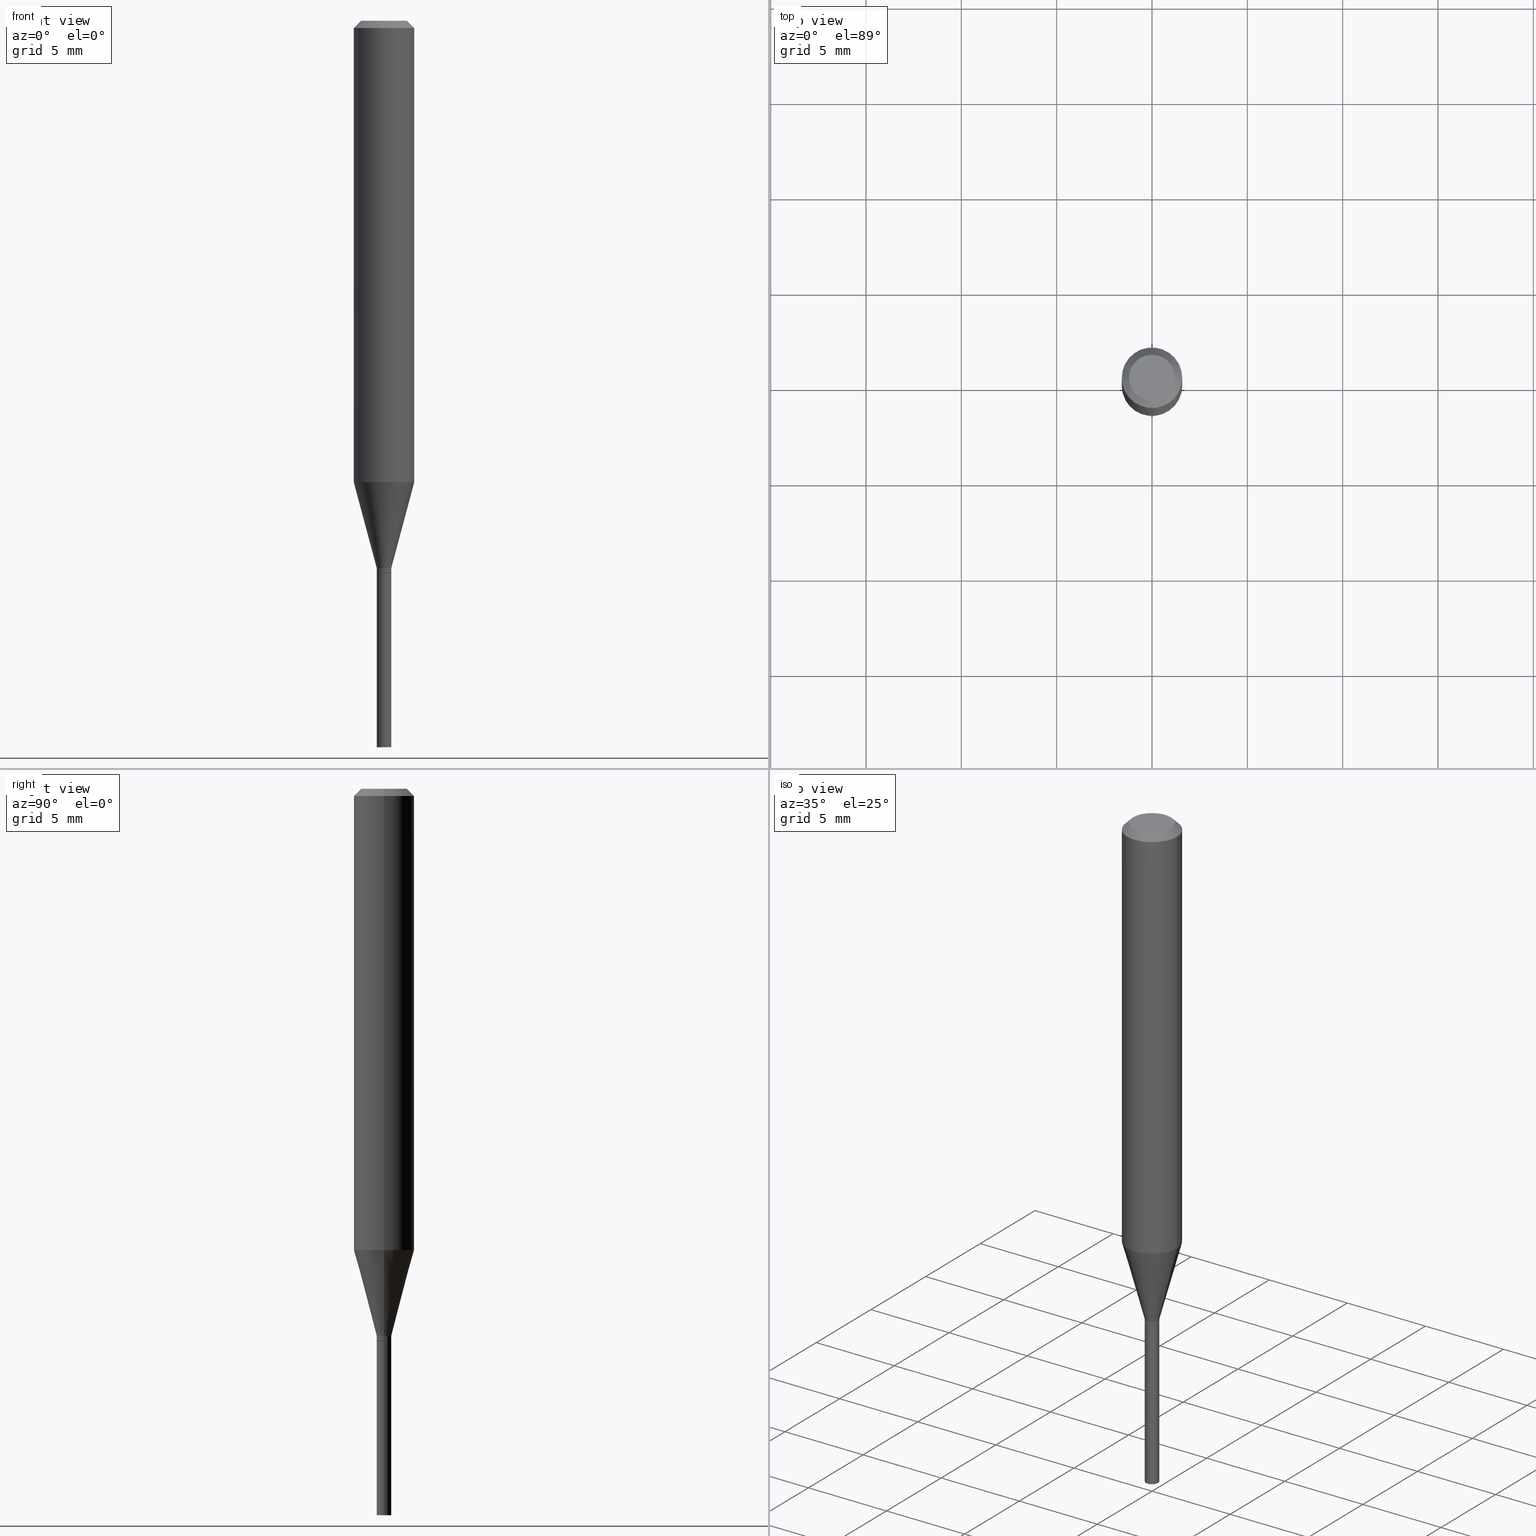
[diagram: canonical four-view strip — front | top / right | iso, engineering-drawing reading convention]
A machine part, canonical four-view strip (front | top / right | iso — engineering-drawing reading convention). The complete STEP part file that produces these views, byte-faithful:
ISO-10303-21;
HEADER;
FILE_DESCRIPTION (( 'STEP AP203' ),
    '1' );
FILE_NAME ('04242.STEP',
    '2024-03-14T17:28:36',
    ( '' ),
    ( '' ),
    'SwSTEP 2.0',
    'SolidWorks 2023',
    '' );
FILE_SCHEMA (( 'CONFIG_CONTROL_DESIGN' ));
ENDSEC;

DATA;
#1 = ADVANCED_FACE ( 'NONE', ( #350 ), #16, .T. ) ;
#2 = CYLINDRICAL_SURFACE ( 'NONE', #328, 0.06250000000000000000 ) ;
#3 = APPROVAL_ROLE ( '' ) ;
#4 = AXIS2_PLACEMENT_3D ( 'NONE', #99, #391, #96 ) ;
#5 = VECTOR ( 'NONE', #157, 39.37007874015748143 ) ;
#6 = FACE_OUTER_BOUND ( 'NONE', #158, .T. ) ;
#7 =( LENGTH_UNIT ( ) NAMED_UNIT ( * ) SI_UNIT ( $, .METRE. ) );
#8 = EDGE_CURVE ( 'NONE', #261, #405, #399, .T. ) ;
#9 = ADVANCED_FACE ( 'NONE', ( #354 ), #442, .F. ) ;
#10 = DIRECTION ( 'NONE',  ( 1.000000000000000000, -6.982962677686266711E-15, 0.000000000000000000 ) ) ;
#11 = DIRECTION ( 'NONE',  ( -2.438088387897960049E-29, 3.491481338843145188E-15, 1.000000000000000000 ) ) ;
#12 = EDGE_LOOP ( 'NONE', ( #315, #388, #269, #97 ) ) ;
#13 = VECTOR ( 'NONE', #414, 39.37007874015748143 ) ;
#14 = DIRECTION ( 'NONE',  ( -0.2588190451025215721, 5.211531920934551831E-15, 0.9659258262890679791 ) ) ;
#15 = CARTESIAN_POINT ( 'NONE',  ( -0.01450000000000000074, -3.877260029595971685E-15, -1.140000000000000124 ) ) ;
#16 = CONICAL_SURFACE ( 'NONE', #162, 0.06250000000000000000, 0.7853981633974237431 ) ;
#17 = VECTOR ( 'NONE', #184, 39.37007874015748143 ) ;
#18 = LOCAL_TIME ( 13, 28, 36.00000000000000000, #423 ) ;
#19 = PLANE ( 'NONE',  #193 ) ;
#20 = VERTEX_POINT ( 'NONE', #304 ) ;
#21 = DIRECTION ( 'NONE',  ( -2.445468806185136597E-29, 3.491481338843145583E-15, 1.000000000000000000 ) ) ;
#22 = EDGE_LOOP ( 'NONE', ( #340, #165, #420, #152 ) ) ;
#23 = CARTESIAN_POINT ( 'NONE',  ( 3.668203209277705088E-31, -5.237222008264718399E-17, -0.01499999999999999944 ) ) ;
#24 = CLOSED_SHELL ( 'NONE', ( #426, #28, #159, #74 ) ) ;
#25 = VECTOR ( 'NONE', #283, 39.37007874015748143 ) ;
#26 = DIRECTION ( 'NONE',  ( -2.445468806185136597E-29, 3.491481338843145583E-15, 1.000000000000000000 ) ) ;
#27 = PERSON_AND_ORGANIZATION_ROLE ( 'creator' ) ;
#28 = ADVANCED_FACE ( 'NONE', ( #134 ), #345, .F. ) ;
#29 = ORIENTED_EDGE ( 'NONE', *, *, #454, .F. ) ;
#30 = EDGE_CURVE ( 'NONE', #443, #261, #308, .T. ) ;
#31 = CARTESIAN_POINT ( 'NONE',  ( 2.787834439051055989E-29, -3.980288726281186698E-15, -1.140000000000000124 ) ) ;
#32 = SECURITY_CLASSIFICATION_LEVEL ( 'unclassified' ) ;
#33 = ORIENTED_EDGE ( 'NONE', *, *, #240, .T. ) ;
#34 = LINE ( 'NONE', #145, #17 ) ;
#35 = CC_DESIGN_PERSON_AND_ORGANIZATION_ASSIGNMENT ( #368, #185, ( #430 ) ) ;
#36 = FACE_OUTER_BOUND ( 'NONE', #68, .T. ) ;
#37 = CALENDAR_DATE ( 2024, 14, 3 ) ;
#38 = CLOSED_SHELL ( 'NONE', ( #326, #160, #444, #45, #239, #80, #125, #1, #9, #334, #116, #154 ) ) ;
#39 = CIRCLE ( 'NONE', #393, 0.04749999999999999362 ) ;
#40 = CC_DESIGN_SECURITY_CLASSIFICATION ( #378, ( #207 ) ) ;
#41 = FACE_OUTER_BOUND ( 'NONE', #12, .T. ) ;
#42 = CARTESIAN_POINT ( 'NONE',  ( 0.06250000000000000000, -4.888073874380388472E-16, -0.01499999999999999944 ) ) ;
#43 =( CONVERSION_BASED_UNIT ( 'INCH', #221 ) LENGTH_UNIT ( ) NAMED_UNIT ( #303 ) );
#44 = CARTESIAN_POINT ( 'NONE',  ( 3.668203209277705088E-31, -5.237222008264718399E-17, -0.01499999999999999944 ) ) ;
#45 = ADVANCED_FACE ( 'NONE', ( #348 ), #62, .T. ) ;
#46 = VECTOR ( 'NONE', #271, 39.37007874015748143 ) ;
#47 = AXIS2_PLACEMENT_3D ( 'NONE', #373, #50, #10 ) ;
#48 = EDGE_CURVE ( 'NONE', #443, #59, #213, .T. ) ;
#49 = DIRECTION ( 'NONE',  ( -2.445468806185136597E-29, 3.491481338843145583E-15, 1.000000000000000000 ) ) ;
#50 = DIRECTION ( 'NONE',  ( -2.445468806185136597E-29, 3.491481338843145583E-15, 1.000000000000000000 ) ) ;
#51 = CC_DESIGN_PERSON_AND_ORGANIZATION_ASSIGNMENT ( #464, #73, ( #207 ) ) ;
#52 = DIRECTION ( 'NONE',  ( -2.445468806185136597E-29, 3.491481338843145583E-15, 1.000000000000000000 ) ) ;
#53 = ORIENTED_EDGE ( 'NONE', *, *, #126, .F. ) ;
#54 = AXIS2_PLACEMENT_3D ( 'NONE', #107, #457, #109 ) ;
#55 = APPROVAL_PERSON_ORGANIZATION ( #425, #180, #275 ) ;
#56 = LINE ( 'NONE', #15, #5 ) ;
#57 = CC_DESIGN_PERSON_AND_ORGANIZATION_ASSIGNMENT ( #392, #360, ( #207 ) ) ;
#58 = CARTESIAN_POINT ( 'NONE',  ( 0.01450000000000000074, -4.081541685107637060E-15, -1.140000000000000124 ) ) ;
#59 = VERTEX_POINT ( 'NONE', #266 ) ;
#60 = AXIS2_PLACEMENT_3D ( 'NONE', #377, #256, #404 ) ;
#61 = DIRECTION ( 'NONE',  ( 1.000000000000000000, -6.982962677686271444E-15, 0.000000000000000000 ) ) ;
#62 = CYLINDRICAL_SURFACE ( 'NONE', #4, 0.06250000000000000000 ) ;
#63 = ORIENTED_EDGE ( 'NONE', *, *, #387, .T. ) ;
#64 = ORIENTED_EDGE ( 'NONE', *, *, #48, .F. ) ;
#65 = CIRCLE ( 'NONE', #87, 0.06250000000000000000 ) ;
#66 = AXIS2_PLACEMENT_3D ( 'NONE', #438, #151, #411 ) ;
#67 = ORIENTED_EDGE ( 'NONE', *, *, #336, .T. ) ;
#68 = EDGE_LOOP ( 'NONE', ( #167, #344, #259, #361 ) ) ;
#69 = FACE_OUTER_BOUND ( 'NONE', #22, .T. ) ;
#70 = CALENDAR_DATE ( 2024, 14, 3 ) ;
#71 = CARTESIAN_POINT ( 'NONE',  ( 3.668203209277704895E-29, -5.237222008264718177E-15, -1.500000000000000222 ) ) ;
#72 = EDGE_CURVE ( 'NONE', #314, #237, #309, .T. ) ;
#73 = PERSON_AND_ORGANIZATION_ROLE ( 'design_supplier' ) ;
#74 = ADVANCED_FACE ( 'NONE', ( #342 ), #19, .F. ) ;
#75 = AXIS2_PLACEMENT_3D ( 'NONE', #191, #88, #228 ) ;
#76 = DIRECTION ( 'NONE',  ( -2.445468806185136597E-29, 3.491481338843145583E-15, 1.000000000000000000 ) ) ;
#77 = PERSON ( 'UNSPECIFIED', 'UNSPECIFIED', 'UNSPECIFIED', ('UNSPECIFIED'), ('UNSPECIFIED'), ('UNSPECIFIED') ) ;
#78 = EDGE_CURVE ( 'NONE', #386, #209, #89, .T. ) ;
#79 = CARTESIAN_POINT ( 'NONE',  ( 0.000000000000000000, 0.000000000000000000, 0.000000000000000000 ) ) ;
#80 = ADVANCED_FACE ( 'NONE', ( #233 ), #251, .T. ) ;
#81 = LINE ( 'NONE', #190, #111 ) ;
#82 = LOCAL_TIME ( 13, 28, 36.00000000000000000, #248 ) ;
#83 = CARTESIAN_POINT ( 'NONE',  ( -0.06249999999999999306, -2.882341379906236744E-15, -0.9527275866404792959 ) ) ;
#84 = FACE_OUTER_BOUND ( 'NONE', #173, .T. ) ;
#85 = ORIENTED_EDGE ( 'NONE', *, *, #336, .F. ) ;
#86 = DIRECTION ( 'NONE',  ( 1.000000000000000000, -6.982962677686266711E-15, 4.876176775795935793E-29 ) ) ;
#87 = AXIS2_PLACEMENT_3D ( 'NONE', #178, #112, #211 ) ;
#88 = DIRECTION ( 'NONE',  ( -2.445468806185136597E-29, 3.491481338843145583E-15, 1.000000000000000000 ) ) ;
#89 = LINE ( 'NONE', #267, #13 ) ;
#90 = EDGE_CURVE ( 'NONE', #20, #143, #447, .T. ) ;
#91 = VERTEX_POINT ( 'NONE', #215 ) ;
#92 = ORIENTED_EDGE ( 'NONE', *, *, #456, .T. ) ;
#93 = ORIENTED_EDGE ( 'NONE', *, *, #370, .F. ) ;
#94 = LOCAL_TIME ( 13, 28, 36.00000000000000000, #433 ) ;
#95 = APPROVAL ( #284, 'UNSPECIFIED' ) ;
#96 = DIRECTION ( 'NONE',  ( 1.000000000000000000, -6.982962677686266711E-15, 4.876176775795935793E-29 ) ) ;
#97 = ORIENTED_EDGE ( 'NONE', *, *, #381, .F. ) ;
#98 = VERTEX_POINT ( 'NONE', #401 ) ;
#99 = CARTESIAN_POINT ( 'NONE',  ( 0.000000000000000000, 0.000000000000000000, 0.000000000000000000 ) ) ;
#100 = ORIENTED_EDGE ( 'NONE', *, *, #48, .T. ) ;
#101 = CIRCLE ( 'NONE', #351, 0.06250000000000000000 ) ;
#102 = FACE_OUTER_BOUND ( 'NONE', #121, .T. ) ;
#103 = DATE_AND_TIME ( #37, #18 ) ;
#104 = CARTESIAN_POINT ( 'NONE',  ( 0.01500000000000006016, -4.083287425777059353E-15, -1.139500000000000179 ) ) ;
#105 = APPROVAL_STATUS ( 'not_yet_approved' ) ;
#106 = PRODUCT_DEFINITION_SHAPE ( 'NONE', 'NONE',  #212 ) ;
#107 = CARTESIAN_POINT ( 'NONE',  ( 3.668203209277704895E-29, -5.237222008264718177E-15, -1.500000000000000222 ) ) ;
#108 = DATE_AND_TIME ( #113, #94 ) ;
#109 = DIRECTION ( 'NONE',  ( 1.000000000000000000, -6.982962677686268288E-15, 0.000000000000000000 ) ) ;
#110 = CIRCLE ( 'NONE', #449, 0.01499999999999999944 ) ;
#111 = VECTOR ( 'NONE', #291, 39.37007874015748143 ) ;
#112 = DIRECTION ( 'NONE',  ( -2.445468806185136597E-29, 3.491481338843145583E-15, 1.000000000000000000 ) ) ;
#113 = CALENDAR_DATE ( 2024, 14, 3 ) ;
#114 = DIRECTION ( 'NONE',  ( -2.445468806185136597E-29, 3.491481338843145583E-15, 1.000000000000000000 ) ) ;
#115 = DIRECTION ( 'NONE',  ( 0.000000000000000000, 0.000000000000000000, 1.000000000000000000 ) ) ;
#116 = ADVANCED_FACE ( 'NONE', ( #36 ), #264, .T. ) ;
#117 = DIRECTION ( 'NONE',  ( -2.445468806185136877E-29, 3.491481338843145188E-15, 1.000000000000000000 ) ) ;
#118 = ORIENTED_EDGE ( 'NONE', *, *, #8, .F. ) ;
#119 = CONICAL_SURFACE ( 'NONE', #214, 0.01450000000000000074, 0.7853981633974718157 ) ;
#120 = CARTESIAN_POINT ( 'NONE',  ( 0.04749999999999999362, -4.035134999187565804E-16, 7.384026679692592746E-16 ) ) ;
#121 = EDGE_LOOP ( 'NONE', ( #100, #63, #118, #341 ) ) ;
#122 = CARTESIAN_POINT ( 'NONE',  ( 0.06250000000000000000, -4.364351673553916694E-16, 3.047610484872459871E-30 ) ) ;
#123 = CARTESIAN_POINT ( 'NONE',  ( 2.786611704647963188E-29, -3.978542985611764405E-15, -1.139500000000000179 ) ) ;
#124 = EDGE_LOOP ( 'NONE', ( #67, #293 ) ) ;
#125 = ADVANCED_FACE ( 'NONE', ( #41 ), #2, .T. ) ;
#126 = EDGE_CURVE ( 'NONE', #314, #277, #65, .T. ) ;
#127 = DIRECTION ( 'NONE',  ( -2.445468806185136597E-29, 3.491481338843145583E-15, 1.000000000000000000 ) ) ;
#128 = DIRECTION ( 'NONE',  ( 2.445468806185136597E-29, -3.491481338843145583E-15, -1.000000000000000000 ) ) ;
#129 = UNCERTAINTY_MEASURE_WITH_UNIT (LENGTH_MEASURE( 1.000000000000000082E-05 ), #43, 'distance_accuracy_value', 'NONE');
#130 = ORIENTED_EDGE ( 'NONE', *, *, #455, .F. ) ;
#131 = ORIENTED_EDGE ( 'NONE', *, *, #446, .T. ) ;
#132 = AXIS2_PLACEMENT_3D ( 'NONE', #44, #189, #186 ) ;
#133 = EDGE_LOOP ( 'NONE', ( #356, #349, #417, #302 ) ) ;
#134 = FACE_OUTER_BOUND ( 'NONE', #313, .T. ) ;
#135 = DIRECTION ( 'NONE',  ( 1.000000000000000000, -6.982962677686271444E-15, 0.000000000000000000 ) ) ;
#136 = PERSON_AND_ORGANIZATION_ROLE ( 'classification_officer' ) ;
#137 = CARTESIAN_POINT ( 'NONE',  ( 2.763379750989204444E-29, -3.945373912892755049E-15, -1.130000000000000115 ) ) ;
#138 = LINE ( 'NONE', #364, #25 ) ;
#139 = PERSON_AND_ORGANIZATION ( #77, #298 ) ;
#140 = ORIENTED_EDGE ( 'NONE', *, *, #379, .F. ) ;
#141 = CARTESIAN_POINT ( 'NONE',  ( 3.668203209277705088E-31, -5.237222008264718399E-17, -0.01499999999999999944 ) ) ;
#142 =( NAMED_UNIT ( * ) PLANE_ANGLE_UNIT ( ) SI_UNIT ( $, .RADIAN. ) );
#143 = VERTEX_POINT ( 'NONE', #175 ) ;
#144 = AXIS2_PLACEMENT_3D ( 'NONE', #31, #76, #253 ) ;
#145 = CARTESIAN_POINT ( 'NONE',  ( -0.06250000000000000000, 3.840629472727444916E-16, -0.01499999999999999944 ) ) ;
#146 = APPLICATION_PROTOCOL_DEFINITION ( 'international standard', 'config_control_design', 1994, #183 ) ;
#147 = CIRCLE ( 'NONE', #60, 0.01499999999999999944 ) ;
#148 = DIRECTION ( 'NONE',  ( -2.445468806185136877E-29, 3.491481338843145188E-15, 1.000000000000000000 ) ) ;
#149 = DIRECTION ( 'NONE',  ( 1.000000000000000000, 0.000000000000000000, 0.000000000000000000 ) ) ;
#150 = DIRECTION ( 'NONE',  ( 1.000000000000000000, -6.982962677686267499E-15, 4.852736867747366768E-29 ) ) ;
#151 = DIRECTION ( 'NONE',  ( -2.445468806185136597E-29, 3.491481338843145583E-15, 1.000000000000000000 ) ) ;
#152 = ORIENTED_EDGE ( 'NONE', *, *, #197, .F. ) ;
#153 = CONICAL_SURFACE ( 'NONE', #132, 0.06250000000000000000, 0.7853981633974237431 ) ;
#154 = ADVANCED_FACE ( 'NONE', ( #254 ), #245, .T. ) ;
#155 = FACE_OUTER_BOUND ( 'NONE', #196, .T. ) ;
#156 = ORIENTED_EDGE ( 'NONE', *, *, #379, .T. ) ;
#157 = DIRECTION ( 'NONE',  ( -0.7071067811865642261, 7.493145998870414114E-15, 0.7071067811865309194 ) ) ;
#158 = EDGE_LOOP ( 'NONE', ( #323, #203, #352, #299 ) ) ;
#159 = ADVANCED_FACE ( 'NONE', ( #69 ), #322, .T. ) ;
#160 = ADVANCED_FACE ( 'NONE', ( #102 ), #119, .T. ) ;
#161 = ORIENTED_EDGE ( 'NONE', *, *, #216, .T. ) ;
#162 = AXIS2_PLACEMENT_3D ( 'NONE', #23, #128, #171 ) ;
#163 = AXIS2_PLACEMENT_3D ( 'NONE', #182, #115, #149 ) ;
#164 = CARTESIAN_POINT ( 'NONE',  ( 1.047444401653218672E-16, 0.01499999999999601999, -1.140000000000000124 ) ) ;
#165 = ORIENTED_EDGE ( 'NONE', *, *, #219, .T. ) ;
#166 = DIRECTION ( 'NONE',  ( 1.000000000000000000, -6.982962677686271444E-15, 0.000000000000000000 ) ) ;
#167 = ORIENTED_EDGE ( 'NONE', *, *, #387, .F. ) ;
#168 = VERTEX_POINT ( 'NONE', #359 ) ;
#169 = APPROVAL_DATE_TIME ( #108, #390 ) ;
#170 = CIRCLE ( 'NONE', #265, 0.06250000000000000000 ) ;
#171 = DIRECTION ( 'NONE',  ( -1.000000000000000000, 6.982962677686266711E-15, 0.000000000000000000 ) ) ;
#172 = COORDINATED_UNIVERSAL_TIME_OFFSET ( 5, 0, .BEHIND. ) ;
#173 = EDGE_LOOP ( 'NONE', ( #64, #407 ) ) ;
#174 = CARTESIAN_POINT ( 'NONE',  ( 2.787834439051055989E-29, -3.980288726281186698E-15, -1.140000000000000124 ) ) ;
#175 = CARTESIAN_POINT ( 'NONE',  ( 0.01500000000000006189, -4.050118353058049207E-15, -1.130000000000000115 ) ) ;
#176 = DATE_TIME_ROLE ( 'creation_date' ) ;
#177 = AXIS2_PLACEMENT_3D ( 'NONE', #463, #320, #181 ) ;
#178 = CARTESIAN_POINT ( 'NONE',  ( 2.329865593921339312E-29, -3.326430589756299754E-15, -0.9527275866404792959 ) ) ;
#179 = APPROVAL_DATE_TIME ( #397, #180 ) ;
#180 = APPROVAL ( #105, 'UNSPECIFIED' ) ;
#181 = DIRECTION ( 'NONE',  ( 1.000000000000000000, -6.982962677686266711E-15, 4.876176775795935793E-29 ) ) ;
#182 = CARTESIAN_POINT ( 'NONE',  ( 0.000000000000000000, 0.000000000000000000, 0.000000000000000000 ) ) ;
#183 = APPLICATION_CONTEXT ( 'configuration controlled 3d designs of mechanical parts and assemblies' ) ;
#184 = DIRECTION ( 'NONE',  ( -0.7071067811865301422, 2.468850131082075228E-15, -0.7071067811865648922 ) ) ;
#185 = PERSON_AND_ORGANIZATION_ROLE ( 'design_owner' ) ;
#186 = DIRECTION ( 'NONE',  ( -1.000000000000000000, 6.982962677686266711E-15, 0.000000000000000000 ) ) ;
#187 = AXIS2_PLACEMENT_3D ( 'NONE', #294, #435, #333 ) ;
#188 = MANIFOLD_SOLID_BREP ( 'Body-Move/Copy2[2]', #38 ) ;
#189 = DIRECTION ( 'NONE',  ( 2.445468806185136597E-29, -3.491481338843145583E-15, -1.000000000000000000 ) ) ;
#190 = CARTESIAN_POINT ( 'NONE',  ( 0.01500000000000006189, -4.050118353058049207E-15, -1.130000000000000115 ) ) ;
#191 = CARTESIAN_POINT ( 'NONE',  ( 2.763379750989204444E-29, -3.945373912892755049E-15, -1.130000000000000115 ) ) ;
#192 = ORIENTED_EDGE ( 'NONE', *, *, #249, .F. ) ;
#193 = AXIS2_PLACEMENT_3D ( 'NONE', #164, #413, #419 ) ;
#194 = APPROVAL_PERSON_ORGANIZATION ( #139, #95, #428 ) ;
#195 = LINE ( 'NONE', #339, #338 ) ;
#196 = EDGE_LOOP ( 'NONE', ( #229, #227, #85, #29 ) ) ;
#197 = EDGE_CURVE ( 'NONE', #98, #380, #258, .T. ) ;
#198 = DIRECTION ( 'NONE',  ( -1.000000000000000000, 6.982962677686265922E-15, -4.876176775795935793E-29 ) ) ;
#199 = LOCAL_TIME ( 13, 28, 36.00000000000000000, #172 ) ;
#200 = CARTESIAN_POINT ( 'NONE',  ( 2.763379750989204444E-29, -3.945373912892755049E-15, -1.130000000000000115 ) ) ;
#201 = EDGE_CURVE ( 'NONE', #277, #314, #170, .T. ) ;
#202 = DIRECTION ( 'NONE',  ( -2.438088387897960049E-29, 3.491481338843145188E-15, 1.000000000000000000 ) ) ;
#203 = ORIENTED_EDGE ( 'NONE', *, *, #78, .T. ) ;
#204 = ORIENTED_EDGE ( 'NONE', *, *, #381, .T. ) ;
#205 = VECTOR ( 'NONE', #441, 39.37007874015748143 ) ;
#206 = CIRCLE ( 'NONE', #187, 0.04749999999999999362 ) ;
#207 = PRODUCT_DEFINITION_FORMATION_WITH_SPECIFIED_SOURCE ( 'ANY', '', #430, .NOT_KNOWN. ) ;
#208 = CARTESIAN_POINT ( 'NONE',  ( 2.786611704647963188E-29, -3.978542985611764405E-15, -1.139500000000000179 ) ) ;
#209 = VERTEX_POINT ( 'NONE', #42 ) ;
#210 = DIRECTION ( 'NONE',  ( 1.000000000000000000, -6.982962677686265922E-15, 0.000000000000000000 ) ) ;
#211 = DIRECTION ( 'NONE',  ( 1.000000000000000000, -6.982962677686262766E-15, 0.000000000000000000 ) ) ;
#212 = PRODUCT_DEFINITION ( 'UNKNOWN', '', #207, #415 ) ;
#213 = CIRCLE ( 'NONE', #362, 0.01450000000000000074 ) ;
#214 = AXIS2_PLACEMENT_3D ( 'NONE', #174, #396, #210 ) ;
#215 = CARTESIAN_POINT ( 'NONE',  ( -0.01499999999999999944, -4.502173956908937315E-15, -1.500000000000000222 ) ) ;
#216 = EDGE_CURVE ( 'NONE', #168, #237, #34, .T. ) ;
#217 = CARTESIAN_POINT ( 'NONE',  ( 2.787834439051055989E-29, -3.980288726281186698E-15, -1.140000000000000124 ) ) ;
#218 = MECHANICAL_CONTEXT ( 'NONE', #307, 'mechanical' ) ;
#219 = EDGE_CURVE ( 'NONE', #91, #273, #363, .T. ) ;
#220 = DIRECTION ( 'NONE',  ( 1.000000000000000000, -6.982962677686268288E-15, 0.000000000000000000 ) ) ;
#221 = LENGTH_MEASURE_WITH_UNIT ( LENGTH_MEASURE( 0.02539999999999999897 ), #7 );
#222 = LINE ( 'NONE', #330, #312 ) ;
#223 = CIRCLE ( 'NONE', #376, 0.01450000000000000074 ) ;
#224 = CARTESIAN_POINT ( 'NONE',  ( -0.01500000000000006016, -3.871961575247749283E-15, -1.139500000000000179 ) ) ;
#225 = EDGE_LOOP ( 'NONE', ( #232, #92 ) ) ;
#226 = CARTESIAN_POINT ( 'NONE',  ( 2.787834439051055989E-29, -3.980288726281186698E-15, -1.140000000000000124 ) ) ;
#227 = ORIENTED_EDGE ( 'NONE', *, *, #282, .T. ) ;
#228 = DIRECTION ( 'NONE',  ( 1.000000000000000000, -6.982962677686271444E-15, 0.000000000000000000 ) ) ;
#229 = ORIENTED_EDGE ( 'NONE', *, *, #255, .T. ) ;
#230 = AXIS2_PLACEMENT_3D ( 'NONE', #123, #49, #406 ) ;
#231 = DIRECTION ( 'NONE',  ( 1.000000000000000000, -6.982962677686272233E-15, 0.000000000000000000 ) ) ;
#232 = ORIENTED_EDGE ( 'NONE', *, *, #455, .T. ) ;
#233 = FACE_OUTER_BOUND ( 'NONE', #451, .T. ) ;
#234 = ORIENTED_EDGE ( 'NONE', *, *, #72, .T. ) ;
#235 = VECTOR ( 'NONE', #14, 39.37007874015748143 ) ;
#236 = CARTESIAN_POINT ( 'NONE',  ( -0.06250000000000000000, 4.440892098500626162E-16, -3.074334431409316114E-30 ) ) ;
#237 = VERTEX_POINT ( 'NONE', #422 ) ;
#238 = EDGE_LOOP ( 'NONE', ( #156, #243, #321, #436 ) ) ;
#239 = ADVANCED_FACE ( 'NONE', ( #466 ), #244, .T. ) ;
#240 = EDGE_CURVE ( 'NONE', #405, #20, #138, .T. ) ;
#241 = CARTESIAN_POINT ( 'NONE',  ( 3.316907271900976096E-16, 0.04749999999999999362, 2.033559703895789590E-16 ) ) ;
#242 = CALENDAR_DATE ( 2024, 14, 3 ) ;
#243 = ORIENTED_EDGE ( 'NONE', *, *, #412, .T. ) ;
#244 = CONICAL_SURFACE ( 'NONE', #403, 0.01500000000000006189, 0.2617993877991502960 ) ;
#245 = CYLINDRICAL_SURFACE ( 'NONE', #177, 0.01500000000000006189 ) ;
#246 = CARTESIAN_POINT ( 'NONE',  ( 0.06249999999999999306, -3.762865757111691029E-15, -0.9527275866404792959 ) ) ;
#247 = CARTESIAN_POINT ( 'NONE',  ( 0.01499999999999999944, -5.341966448430012335E-15, -1.500000000000000222 ) ) ;
#248 = COORDINATED_UNIVERSAL_TIME_OFFSET ( 5, 0, .BEHIND. ) ;
#249 = EDGE_CURVE ( 'NONE', #209, #237, #101, .T. ) ;
#250 = AXIS2_PLACEMENT_3D ( 'NONE', #384, #445, #61 ) ;
#251 = CONICAL_SURFACE ( 'NONE', #250, 0.01500000000000006189, 0.2617993877991502960 ) ;
#252 = AXIS2_PLACEMENT_3D ( 'NONE', #226, #11, #297 ) ;
#253 = DIRECTION ( 'NONE',  ( 1.000000000000000000, -6.982962677686265922E-15, 0.000000000000000000 ) ) ;
#254 = FACE_OUTER_BOUND ( 'NONE', #133, .T. ) ;
#255 = EDGE_CURVE ( 'NONE', #273, #91, #110, .T. ) ;
#256 = DIRECTION ( 'NONE',  ( -2.445468806185136597E-29, 3.491481338843145583E-15, 1.000000000000000000 ) ) ;
#257 = CYLINDRICAL_SURFACE ( 'NONE', #431, 0.01500000000000006189 ) ;
#258 = CIRCLE ( 'NONE', #329, 0.01499999999999999944 ) ;
#259 = ORIENTED_EDGE ( 'NONE', *, *, #30, .T. ) ;
#260 = FACE_OUTER_BOUND ( 'NONE', #295, .T. ) ;
#261 = VERTEX_POINT ( 'NONE', #104 ) ;
#262 = CARTESIAN_POINT ( 'NONE',  ( 2.787834439051055989E-29, -3.980288726281186698E-15, -1.140000000000000124 ) ) ;
#263 = CARTESIAN_POINT ( 'NONE',  ( 0.01499999999999999944, -4.085033166446480067E-15, -1.140000000000000124 ) ) ;
#264 = CONICAL_SURFACE ( 'NONE', #144, 0.01450000000000000074, 0.7853981633974718157 ) ;
#265 = AXIS2_PLACEMENT_3D ( 'NONE', #316, #357, #317 ) ;
#266 = CARTESIAN_POINT ( 'NONE',  ( -0.01450000000000000074, -3.874610802421860484E-15, -1.140000000000000124 ) ) ;
#267 = CARTESIAN_POINT ( 'NONE',  ( 0.06250000000000000000, -4.811533449433679005E-16, -0.01499999999999999944 ) ) ;
#268 = EDGE_LOOP ( 'NONE', ( #389, #234, #192, #437 ) ) ;
#269 = ORIENTED_EDGE ( 'NONE', *, *, #306, .T. ) ;
#270 = CIRCLE ( 'NONE', #230, 0.01500000000000006016 ) ;
#271 = DIRECTION ( 'NONE',  ( -2.445468806185136877E-29, 3.491481338843145188E-15, 1.000000000000000000 ) ) ;
#272 = APPROVAL_DATE_TIME ( #450, #95 ) ;
#273 = VERTEX_POINT ( 'NONE', #247 ) ;
#274 = ORIENTED_EDGE ( 'NONE', *, *, #255, .F. ) ;
#275 = APPROVAL_ROLE ( '' ) ;
#276 = DIRECTION ( 'NONE',  ( -2.445468806185136597E-29, 3.491481338843145583E-15, 1.000000000000000000 ) ) ;
#277 = VERTEX_POINT ( 'NONE', #246 ) ;
#278 = CC_DESIGN_DATE_AND_TIME_ASSIGNMENT ( #103, #395, ( #378 ) ) ;
#279 = APPROVAL_PERSON_ORGANIZATION ( #325, #390, #3 ) ;
#280 = CC_DESIGN_APPROVAL ( #180, ( #207 ) ) ;
#281 = DIRECTION ( 'NONE',  ( -2.445468806185136597E-29, 3.491481338843145583E-15, 1.000000000000000000 ) ) ;
#282 = EDGE_CURVE ( 'NONE', #91, #98, #398, .T. ) ;
#283 = DIRECTION ( 'NONE',  ( -2.445468806185136877E-29, 3.491481338843145188E-15, 1.000000000000000000 ) ) ;
#284 = APPROVAL_STATUS ( 'not_yet_approved' ) ;
#285 = CARTESIAN_POINT ( 'NONE',  ( -0.01499999999999999944, 1.065814103640150239E-16, -7.378402635382358533E-31 ) ) ;
#286 =( NAMED_UNIT ( * ) SI_UNIT ( $, .STERADIAN. ) SOLID_ANGLE_UNIT ( ) );
#287 = CIRCLE ( 'NONE', #75, 0.01500000000000006189 ) ;
#288 = DIRECTION ( 'NONE',  ( 1.000000000000000000, -6.982962677686266711E-15, 0.000000000000000000 ) ) ;
#289 = APPROVAL_STATUS ( 'not_yet_approved' ) ;
#290 = EDGE_CURVE ( 'NONE', #59, #443, #223, .T. ) ;
#291 = DIRECTION ( 'NONE',  ( 0.2588190451025215721, 1.565188264969619995E-15, 0.9659258262890679791 ) ) ;
#292 = APPLICATION_PROTOCOL_DEFINITION ( 'international standard', 'config_control_design', 1994, #307 ) ;
#293 = ORIENTED_EDGE ( 'NONE', *, *, #197, .T. ) ;
#294 = CARTESIAN_POINT ( 'NONE',  ( -1.805740690922698150E-44, 2.578119135766651022E-30, 7.384026679692567108E-16 ) ) ;
#295 = EDGE_LOOP ( 'NONE', ( #310, #33, #140, #93 ) ) ;
#296 = AXIS2_PLACEMENT_3D ( 'NONE', #208, #26, #231 ) ;
#297 = DIRECTION ( 'NONE',  ( 1.000000000000000000, -6.982962677686265922E-15, 4.876176775795935793E-29 ) ) ;
#298 = ORGANIZATION ( 'UNSPECIFIED', 'UNSPECIFIED', '' ) ;
#299 = ORIENTED_EDGE ( 'NONE', *, *, #216, .F. ) ;
#300 = PLANE ( 'NONE',  #252 ) ;
#301 = DIRECTION ( 'NONE',  ( 1.000000000000000000, -6.982962677686265922E-15, 0.000000000000000000 ) ) ;
#302 = ORIENTED_EDGE ( 'NONE', *, *, #90, .F. ) ;
#303 = DIMENSIONAL_EXPONENTS ( 1.000000000000000000, 0.000000000000000000, 0.000000000000000000, 0.000000000000000000, 0.000000000000000000, 0.000000000000000000, 0.000000000000000000 ) ;
#304 = CARTESIAN_POINT ( 'NONE',  ( -0.01500000000000006189, -3.360566941217487941E-15, -1.130000000000000115 ) ) ;
#305 =( GEOMETRIC_REPRESENTATION_CONTEXT ( 3 ) GLOBAL_UNCERTAINTY_ASSIGNED_CONTEXT ( ( #129 ) ) GLOBAL_UNIT_ASSIGNED_CONTEXT ( ( #43, #142, #286 ) ) REPRESENTATION_CONTEXT ( 'NONE', 'WORKASPACE' ) );
#306 = EDGE_CURVE ( 'NONE', #277, #209, #439, .T. ) ;
#307 = APPLICATION_CONTEXT ( 'configuration controlled 3d designs of mechanical parts and assemblies' ) ;
#308 = LINE ( 'NONE', #58, #205 ) ;
#309 = LINE ( 'NONE', #236, #46 ) ;
#310 = ORIENTED_EDGE ( 'NONE', *, *, #8, .T. ) ;
#311 = CARTESIAN_POINT ( 'NONE',  ( 2.787834439051055989E-29, -3.980288726281186698E-15, -1.140000000000000124 ) ) ;
#312 = VECTOR ( 'NONE', #148, 39.37007874015748143 ) ;
#313 = EDGE_LOOP ( 'NONE', ( #274, #465 ) ) ;
#314 = VERTEX_POINT ( 'NONE', #83 ) ;
#315 = ORIENTED_EDGE ( 'NONE', *, *, #72, .F. ) ;
#316 = CARTESIAN_POINT ( 'NONE',  ( 2.329865593921339312E-29, -3.326430589756299754E-15, -0.9527275866404792959 ) ) ;
#317 = DIRECTION ( 'NONE',  ( 1.000000000000000000, -6.982962677686262766E-15, 0.000000000000000000 ) ) ;
#318 = DATE_AND_TIME ( #70, #343 ) ;
#319 = AXIS2_PLACEMENT_3D ( 'NONE', #79, #394, #459 ) ;
#320 = DIRECTION ( 'NONE',  ( -2.445468806185136597E-29, 3.491481338843145583E-15, 1.000000000000000000 ) ) ;
#321 = ORIENTED_EDGE ( 'NONE', *, *, #201, .F. ) ;
#322 = CYLINDRICAL_SURFACE ( 'NONE', #319, 0.01499999999999999944 ) ;
#323 = ORIENTED_EDGE ( 'NONE', *, *, #456, .F. ) ;
#324 = DIRECTION ( 'NONE',  ( -2.445468806185136597E-29, 3.491481338843145583E-15, 1.000000000000000000 ) ) ;
#325 = PERSON_AND_ORGANIZATION ( #77, #298 ) ;
#326 = ADVANCED_FACE ( 'NONE', ( #260 ), #257, .T. ) ;
#327 = EDGE_CURVE ( 'NONE', #405, #261, #270, .T. ) ;
#328 = AXIS2_PLACEMENT_3D ( 'NONE', #400, #427, #432 ) ;
#329 = AXIS2_PLACEMENT_3D ( 'NONE', #217, #367, #220 ) ;
#330 = CARTESIAN_POINT ( 'NONE',  ( 0.01499999999999999944, -1.047444401652940105E-16, 7.314265163693904390E-31 ) ) ;
#331 = CARTESIAN_POINT ( 'NONE',  ( -1.805740690922698150E-44, 2.578119135766651022E-30, 7.384026679692567108E-16 ) ) ;
#332 = PRODUCT_RELATED_PRODUCT_CATEGORY ( 'detail', '', ( #430 ) ) ;
#333 = DIRECTION ( 'NONE',  ( 1.000000000000000000, -6.982962677686267499E-15, 4.852736867747366768E-29 ) ) ;
#334 = ADVANCED_FACE ( 'NONE', ( #84 ), #300, .F. ) ;
#335 = MANIFOLD_SOLID_BREP ( 'Body-Move/Copy2[1]', #24 ) ;
#336 = EDGE_CURVE ( 'NONE', #380, #98, #147, .T. ) ;
#337 = CARTESIAN_POINT ( 'NONE',  ( -0.01500000000000006189, -3.838792502528739137E-15, -1.130000000000000115 ) ) ;
#338 = VECTOR ( 'NONE', #402, 39.37007874015748143 ) ;
#339 = CARTESIAN_POINT ( 'NONE',  ( 0.01500000000000006189, -1.047444401652944296E-16, 7.314265163693934168E-31 ) ) ;
#340 = ORIENTED_EDGE ( 'NONE', *, *, #282, .F. ) ;
#341 = ORIENTED_EDGE ( 'NONE', *, *, #30, .F. ) ;
#342 = FACE_OUTER_BOUND ( 'NONE', #124, .T. ) ;
#343 = LOCAL_TIME ( 13, 28, 36.00000000000000000, #460 ) ;
#344 = ORIENTED_EDGE ( 'NONE', *, *, #290, .T. ) ;
#345 = PLANE ( 'NONE',  #416 ) ;
#346 = CC_DESIGN_PERSON_AND_ORGANIZATION_ASSIGNMENT ( #458, #136, ( #378 ) ) ;
#347 = ORIENTED_EDGE ( 'NONE', *, *, #412, .F. ) ;
#348 = FACE_OUTER_BOUND ( 'NONE', #268, .T. ) ;
#349 = ORIENTED_EDGE ( 'NONE', *, *, #327, .T. ) ;
#350 = FACE_OUTER_BOUND ( 'NONE', #453, .T. ) ;
#351 = AXIS2_PLACEMENT_3D ( 'NONE', #141, #276, #288 ) ;
#352 = ORIENTED_EDGE ( 'NONE', *, *, #249, .T. ) ;
#353 = CC_DESIGN_PERSON_AND_ORGANIZATION_ASSIGNMENT ( #355, #27, ( #212 ) ) ;
#354 = FACE_OUTER_BOUND ( 'NONE', #225, .T. ) ;
#355 = PERSON_AND_ORGANIZATION ( #77, #298 ) ;
#356 = ORIENTED_EDGE ( 'NONE', *, *, #240, .F. ) ;
#357 = DIRECTION ( 'NONE',  ( -2.445468806185136597E-29, 3.491481338843145583E-15, 1.000000000000000000 ) ) ;
#358 = ADVANCED_BREP_SHAPE_REPRESENTATION ( '04242', ( #335, #188, #163 ), #305 ) ;
#359 = CARTESIAN_POINT ( 'NONE',  ( -0.04749999999999999362, 3.578768372314223818E-16, 7.384026679692543442E-16 ) ) ;
#360 = PERSON_AND_ORGANIZATION_ROLE ( 'creator' ) ;
#361 = ORIENTED_EDGE ( 'NONE', *, *, #327, .F. ) ;
#362 = AXIS2_PLACEMENT_3D ( 'NONE', #311, #127, #448 ) ;
#363 = CIRCLE ( 'NONE', #54, 0.01499999999999999944 ) ;
#364 = CARTESIAN_POINT ( 'NONE',  ( -0.01500000000000006189, 1.065814103640154677E-16, -7.378402635382389186E-31 ) ) ;
#365 = CALENDAR_DATE ( 2024, 14, 3 ) ;
#366 = CC_DESIGN_DATE_AND_TIME_ASSIGNMENT ( #318, #176, ( #212 ) ) ;
#367 = DIRECTION ( 'NONE',  ( -2.445468806185136597E-29, 3.491481338843145583E-15, 1.000000000000000000 ) ) ;
#368 = PERSON_AND_ORGANIZATION ( #77, #298 ) ;
#369 = LINE ( 'NONE', #337, #235 ) ;
#370 = EDGE_CURVE ( 'NONE', #261, #143, #195, .T. ) ;
#371 = CYLINDRICAL_SURFACE ( 'NONE', #66, 0.01499999999999999944 ) ;
#372 = CARTESIAN_POINT ( 'NONE',  ( 0.01450000000000000074, -4.081541685107637060E-15, -1.140000000000000124 ) ) ;
#373 = CARTESIAN_POINT ( 'NONE',  ( 3.668203209277705088E-31, -5.237222008264718399E-17, -0.01499999999999999944 ) ) ;
#374 = ORIENTED_EDGE ( 'NONE', *, *, #90, .T. ) ;
#375 = AXIS2_PLACEMENT_3D ( 'NONE', #200, #21, #166 ) ;
#376 = AXIS2_PLACEMENT_3D ( 'NONE', #262, #52, #301 ) ;
#377 = CARTESIAN_POINT ( 'NONE',  ( 2.787834439051055989E-29, -3.980288726281186698E-15, -1.140000000000000124 ) ) ;
#378 = SECURITY_CLASSIFICATION ( '', '', #32 ) ;
#379 = EDGE_CURVE ( 'NONE', #143, #20, #287, .T. ) ;
#380 = VERTEX_POINT ( 'NONE', #263 ) ;
#381 = EDGE_CURVE ( 'NONE', #237, #209, #385, .T. ) ;
#382 = CARTESIAN_POINT ( 'NONE',  ( 3.576687321579069994E-29, -5.368277968210015545E-15, -1.500000000000000222 ) ) ;
#383 = ORIENTED_EDGE ( 'NONE', *, *, #78, .F. ) ;
#384 = CARTESIAN_POINT ( 'NONE',  ( 2.763379750989204444E-29, -3.945373912892755049E-15, -1.130000000000000115 ) ) ;
#385 = CIRCLE ( 'NONE', #47, 0.06250000000000000000 ) ;
#386 = VERTEX_POINT ( 'NONE', #120 ) ;
#387 = EDGE_CURVE ( 'NONE', #59, #405, #56, .T. ) ;
#388 = ORIENTED_EDGE ( 'NONE', *, *, #126, .T. ) ;
#389 = ORIENTED_EDGE ( 'NONE', *, *, #201, .T. ) ;
#390 = APPROVAL ( #289, 'UNSPECIFIED' ) ;
#391 = DIRECTION ( 'NONE',  ( -2.445468806185136597E-29, 3.491481338843145583E-15, 1.000000000000000000 ) ) ;
#392 = PERSON_AND_ORGANIZATION ( #77, #298 ) ;
#393 = AXIS2_PLACEMENT_3D ( 'NONE', #331, #114, #150 ) ;
#394 = DIRECTION ( 'NONE',  ( -2.445468806185136597E-29, 3.491481338843145583E-15, 1.000000000000000000 ) ) ;
#395 = DATE_TIME_ROLE ( 'classification_date' ) ;
#396 = DIRECTION ( 'NONE',  ( -2.445468806185136597E-29, 3.491481338843145583E-15, 1.000000000000000000 ) ) ;
#397 = DATE_AND_TIME ( #242, #199 ) ;
#398 = LINE ( 'NONE', #285, #461 ) ;
#399 = CIRCLE ( 'NONE', #296, 0.01500000000000006016 ) ;
#400 = CARTESIAN_POINT ( 'NONE',  ( 0.000000000000000000, 0.000000000000000000, 0.000000000000000000 ) ) ;
#401 = CARTESIAN_POINT ( 'NONE',  ( -0.01499999999999999944, -4.502173956908937315E-15, -1.140000000000000124 ) ) ;
#402 = DIRECTION ( 'NONE',  ( -2.445468806185136877E-29, 3.491481338843145188E-15, 1.000000000000000000 ) ) ;
#403 = AXIS2_PLACEMENT_3D ( 'NONE', #137, #324, #135 ) ;
#404 = DIRECTION ( 'NONE',  ( 1.000000000000000000, -6.982962677686268288E-15, 0.000000000000000000 ) ) ;
#405 = VERTEX_POINT ( 'NONE', #224 ) ;
#406 = DIRECTION ( 'NONE',  ( 1.000000000000000000, -6.982962677686272233E-15, 0.000000000000000000 ) ) ;
#407 = ORIENTED_EDGE ( 'NONE', *, *, #290, .F. ) ;
#408 = CARTESIAN_POINT ( 'NONE',  ( 0.000000000000000000, 0.000000000000000000, 0.000000000000000000 ) ) ;
#409 = AXIS2_PLACEMENT_3D ( 'NONE', #241, #452, #198 ) ;
#410 = VECTOR ( 'NONE', #117, 39.37007874015748143 ) ;
#411 = DIRECTION ( 'NONE',  ( 1.000000000000000000, -6.982962677686267499E-15, 4.876176775795936353E-29 ) ) ;
#412 = EDGE_CURVE ( 'NONE', #20, #314, #369, .T. ) ;
#413 = DIRECTION ( 'NONE',  ( 2.438088387897960049E-29, -3.491481338843145188E-15, -1.000000000000000000 ) ) ;
#414 = DIRECTION ( 'NONE',  ( 0.7071067811865301422, -7.319954787623197670E-15, -0.7071067811865648922 ) ) ;
#415 = DESIGN_CONTEXT ( 'detailed design', #183, 'design' ) ;
#416 = AXIS2_PLACEMENT_3D ( 'NONE', #382, #202, #421 ) ;
#417 = ORIENTED_EDGE ( 'NONE', *, *, #370, .T. ) ;
#418 = CC_DESIGN_APPROVAL ( #390, ( #212 ) ) ;
#419 = DIRECTION ( 'NONE',  ( -1.000000000000000000, 6.982962677686265922E-15, -4.876176775795935793E-29 ) ) ;
#420 = ORIENTED_EDGE ( 'NONE', *, *, #454, .T. ) ;
#421 = DIRECTION ( 'NONE',  ( 1.000000000000000000, -6.982962677686265922E-15, 4.876176775795935793E-29 ) ) ;
#422 = CARTESIAN_POINT ( 'NONE',  ( -0.06250000000000000000, -1.245312195069410801E-15, -0.01499999999999999944 ) ) ;
#423 = COORDINATED_UNIVERSAL_TIME_OFFSET ( 5, 0, .BEHIND. ) ;
#424 = DIRECTION ( 'NONE',  ( 1.000000000000000000, -6.982962677686268288E-15, 0.000000000000000000 ) ) ;
#425 = PERSON_AND_ORGANIZATION ( #77, #298 ) ;
#426 = ADVANCED_FACE ( 'NONE', ( #155 ), #371, .T. ) ;
#427 = DIRECTION ( 'NONE',  ( -2.445468806185136597E-29, 3.491481338843145583E-15, 1.000000000000000000 ) ) ;
#428 = APPROVAL_ROLE ( '' ) ;
#429 = DIRECTION ( 'NONE',  ( -2.445468806185136877E-29, 3.491481338843145188E-15, 1.000000000000000000 ) ) ;
#430 = PRODUCT ( '04242', '04242', '', ( #218 ) ) ;
#431 = AXIS2_PLACEMENT_3D ( 'NONE', #408, #434, #86 ) ;
#432 = DIRECTION ( 'NONE',  ( 1.000000000000000000, -6.982962677686266711E-15, 4.876176775795935793E-29 ) ) ;
#433 = COORDINATED_UNIVERSAL_TIME_OFFSET ( 5, 0, .BEHIND. ) ;
#434 = DIRECTION ( 'NONE',  ( -2.445468806185136597E-29, 3.491481338843145583E-15, 1.000000000000000000 ) ) ;
#435 = DIRECTION ( 'NONE',  ( -2.445468806185136597E-29, 3.491481338843145583E-15, 1.000000000000000000 ) ) ;
#436 = ORIENTED_EDGE ( 'NONE', *, *, #446, .F. ) ;
#437 = ORIENTED_EDGE ( 'NONE', *, *, #306, .F. ) ;
#438 = CARTESIAN_POINT ( 'NONE',  ( 0.000000000000000000, 0.000000000000000000, 0.000000000000000000 ) ) ;
#439 = LINE ( 'NONE', #122, #410 ) ;
#440 = SHAPE_DEFINITION_REPRESENTATION ( #106, #358 ) ;
#441 = DIRECTION ( 'NONE',  ( 0.7071067811865642261, -2.468850131082431399E-15, 0.7071067811865309194 ) ) ;
#442 = PLANE ( 'NONE',  #409 ) ;
#443 = VERTEX_POINT ( 'NONE', #372 ) ;
#444 = ADVANCED_FACE ( 'NONE', ( #6 ), #153, .T. ) ;
#445 = DIRECTION ( 'NONE',  ( -2.445468806185136597E-29, 3.491481338843145583E-15, 1.000000000000000000 ) ) ;
#446 = EDGE_CURVE ( 'NONE', #143, #277, #81, .T. ) ;
#447 = CIRCLE ( 'NONE', #375, 0.01500000000000006189 ) ;
#448 = DIRECTION ( 'NONE',  ( 1.000000000000000000, -6.982962677686265922E-15, 0.000000000000000000 ) ) ;
#449 = AXIS2_PLACEMENT_3D ( 'NONE', #71, #281, #424 ) ;
#450 = DATE_AND_TIME ( #365, #82 ) ;
#451 = EDGE_LOOP ( 'NONE', ( #347, #374, #131, #53 ) ) ;
#452 = DIRECTION ( 'NONE',  ( 2.438088387897960049E-29, -3.491481338843145188E-15, -1.000000000000000000 ) ) ;
#453 = EDGE_LOOP ( 'NONE', ( #383, #130, #161, #204 ) ) ;
#454 = EDGE_CURVE ( 'NONE', #273, #380, #222, .T. ) ;
#455 = EDGE_CURVE ( 'NONE', #168, #386, #39, .T. ) ;
#456 = EDGE_CURVE ( 'NONE', #386, #168, #206, .T. ) ;
#457 = DIRECTION ( 'NONE',  ( -2.445468806185136597E-29, 3.491481338843145583E-15, 1.000000000000000000 ) ) ;
#458 = PERSON_AND_ORGANIZATION ( #77, #298 ) ;
#459 = DIRECTION ( 'NONE',  ( 1.000000000000000000, -6.982962677686267499E-15, 4.876176775795936353E-29 ) ) ;
#460 = COORDINATED_UNIVERSAL_TIME_OFFSET ( 5, 0, .BEHIND. ) ;
#461 = VECTOR ( 'NONE', #429, 39.37007874015748143 ) ;
#462 = CC_DESIGN_APPROVAL ( #95, ( #378 ) ) ;
#463 = CARTESIAN_POINT ( 'NONE',  ( 0.000000000000000000, 0.000000000000000000, 0.000000000000000000 ) ) ;
#464 = PERSON_AND_ORGANIZATION ( #77, #298 ) ;
#465 = ORIENTED_EDGE ( 'NONE', *, *, #219, .F. ) ;
#466 = FACE_OUTER_BOUND ( 'NONE', #238, .T. ) ;
ENDSEC;
END-ISO-10303-21;
